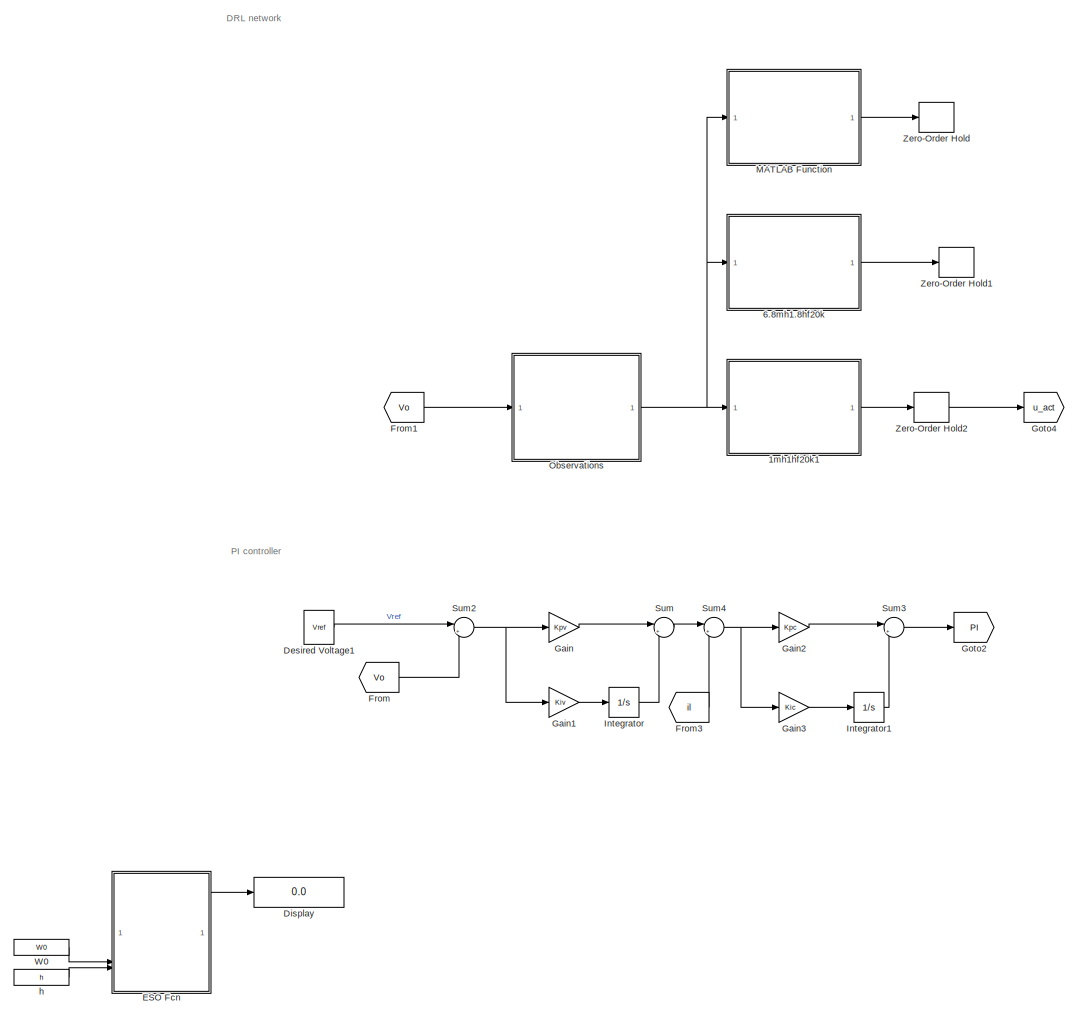
[diagram: root canvas - part 1/2, left side, full height]
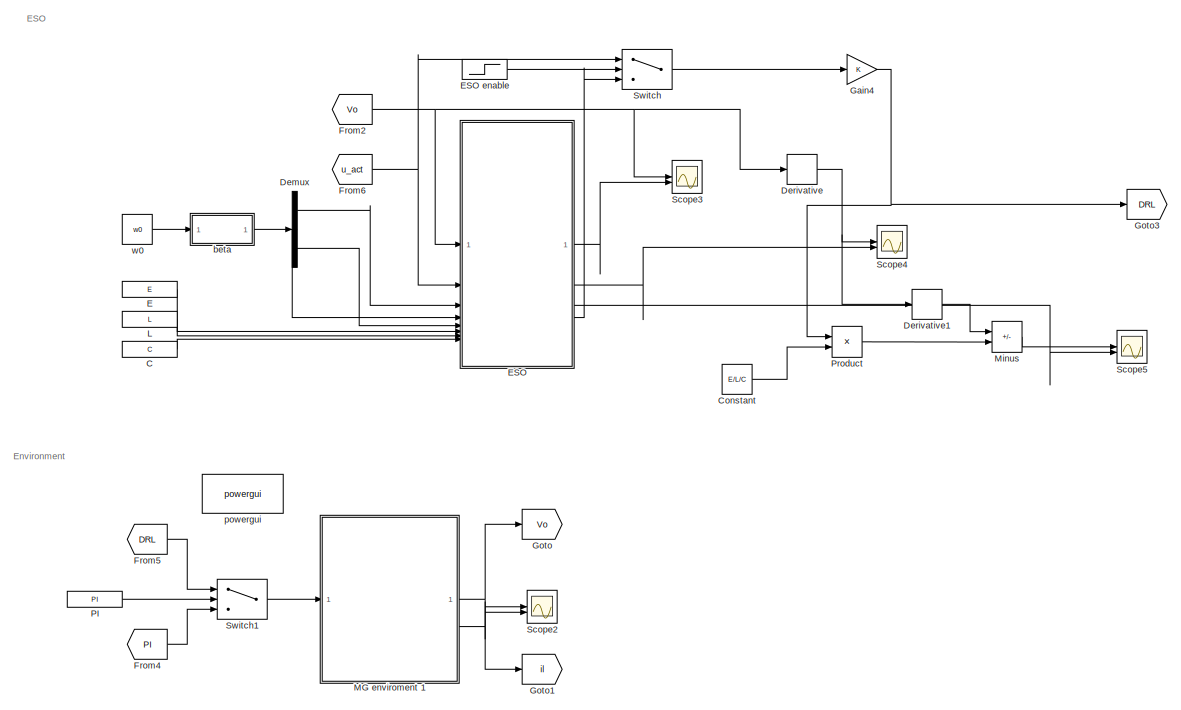
[diagram: root canvas - part 2/2, middle right region]
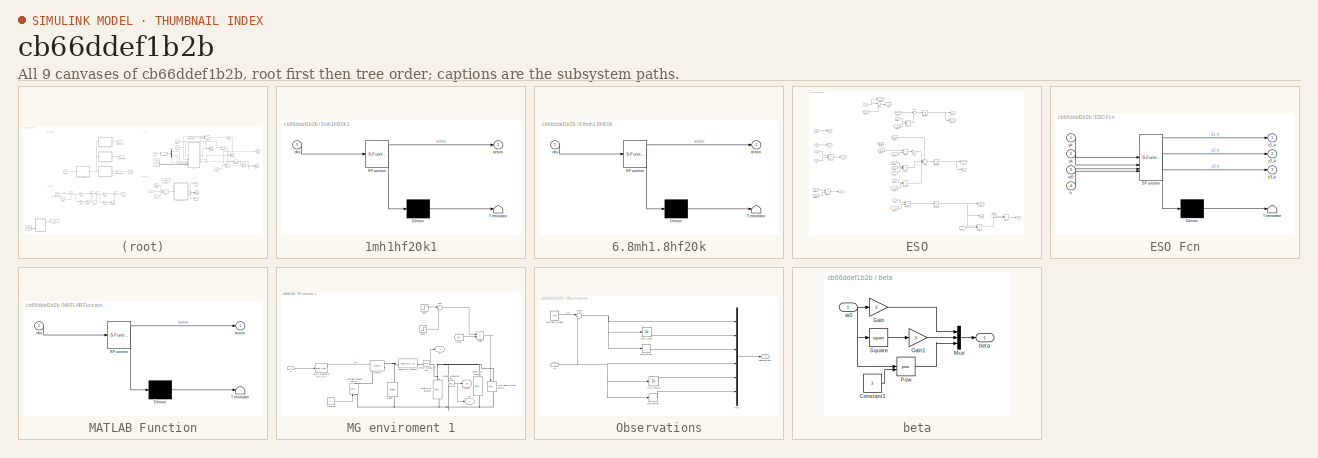
[diagram: thumbnail index - all 9 canvases of the model, root first then tree order]
MODEL slx_cb66ddef1b2b
KIND model
CONFIG AbsTol = auto
CONFIG EnableMultiTasking = off
CONFIG FixedStep = auto
CONFIG MaxStep = auto
CONFIG MinStep = auto
CONFIG PostLoadFcn = , if any(exist('dsrtsu_mdlpostloadfcn', 'file') == [2, 3, 6]), try dsrtsu_mdlpostloadfcn('Execute', bdroot); catch fprintf('Error in PostLoadFcn (dsrtsu_mdlpostloadfcn) for model "%s":\n %s\n', bdroot, lasterr); end, end, \n
CONFIG RelTol = 1e-3
CONFIG SampleTimeConstraint = Unconstrained
CONFIG SolverName = VariableStepAuto
CONFIG StartTime = 0.0
CONFIG StopTime = 0.4
BLOCK [SubSystem] 1mh1hf20k1
  ErrorFcn = Stateflow.Translate.translate
  PermitHierarchicalResolution = ExplicitOnly
  SFBlockType = MATLAB Function
  TreatAsAtomicUnit = on
BLOCK [Demux] 1mh1hf20k1/ Demux 
  Outputs = 1
BLOCK [S-Function] 1mh1hf20k1/ SFunction 
  EnableBusSupport = on
  FunctionName = sf_sfun
  PortCounts = [1 2]
  SFcnIsStateOwnerBlock = off
  SFunctionDeploymentMode = off
  Tag = Stateflow S-Function 3
BLOCK [Terminator] 1mh1hf20k1/ Terminator 
BLOCK [Outport] 1mh1hf20k1/action
BLOCK [Inport] 1mh1hf20k1/obs
BLOCK [SubSystem] 6.8mh1.8hf20k
  Commented = on
  ErrorFcn = Stateflow.Translate.translate
  PermitHierarchicalResolution = ExplicitOnly
  SFBlockType = MATLAB Function
  TreatAsAtomicUnit = on
BLOCK [Demux] 6.8mh1.8hf20k/ Demux 
  Outputs = 1
BLOCK [S-Function] 6.8mh1.8hf20k/ SFunction 
  EnableBusSupport = off
  FunctionName = sf_sfun
  PortCounts = [1 2]
  SFcnIsStateOwnerBlock = off
  SFunctionDeploymentMode = off
  Tag = Stateflow S-Function 1
BLOCK [Terminator] 6.8mh1.8hf20k/ Terminator 
BLOCK [Outport] 6.8mh1.8hf20k/action
BLOCK [Inport] 6.8mh1.8hf20k/obs
BLOCK [Constant] C
  Value = C
BLOCK [Constant] Constant
  Value = E/L/C
BLOCK [Demux] Demux
  Outputs = 3
BLOCK [Derivative] Derivative
BLOCK [Derivative] Derivative1
BLOCK [Constant] Desired Voltage1
  Value = Vref
BLOCK [Display] Display
  Commented = on
  Decimation = 1
BLOCK [Constant] E
  Value = E
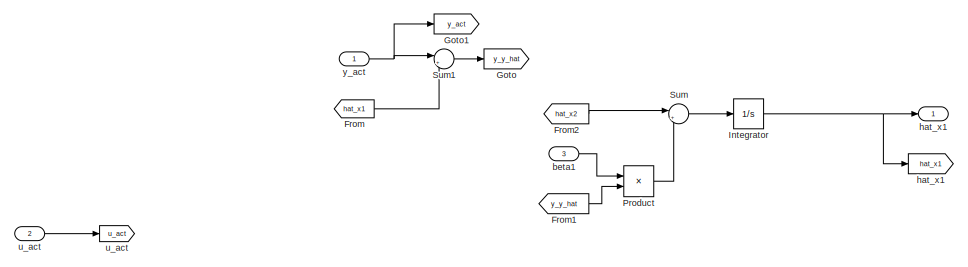
[diagram: ESO - part 1/2, top center region]
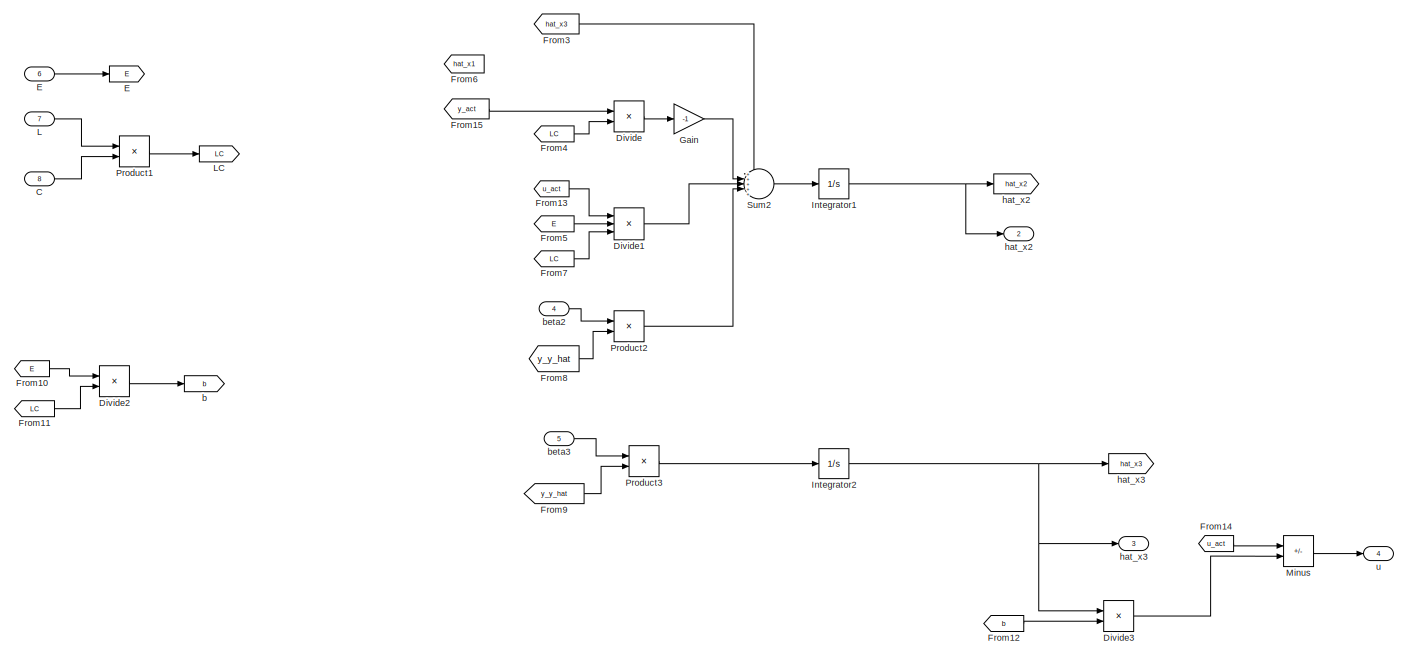
[diagram: ESO - part 2/2, full width, middle band]
BLOCK [SubSystem] ESO
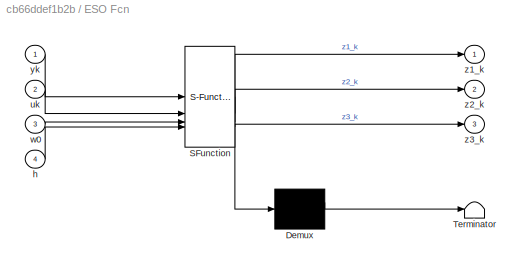
BLOCK [SubSystem] ESO Fcn
  Commented = on
  ErrorFcn = Stateflow.Translate.translate
  PermitHierarchicalResolution = ExplicitOnly
  SFBlockType = MATLAB Function
  TreatAsAtomicUnit = on
BLOCK [Demux] ESO Fcn/ Demux 
  Outputs = 1
BLOCK [S-Function] ESO Fcn/ SFunction 
  EnableBusSupport = off
  FunctionName = sf_sfun
  PortCounts = [4 4]
  SFcnIsStateOwnerBlock = off
  SFunctionDeploymentMode = off
  Tag = Stateflow S-Function 4
BLOCK [Terminator] ESO Fcn/ Terminator 
BLOCK [Inport] ESO Fcn/h
  Port = 4
BLOCK [Inport] ESO Fcn/uk
  Port = 2
BLOCK [Inport] ESO Fcn/w0
  Port = 3
BLOCK [Inport] ESO Fcn/yk
BLOCK [Outport] ESO Fcn/z1_k
BLOCK [Outport] ESO Fcn/z2_k
  Port = 2
BLOCK [Outport] ESO Fcn/z3_k
  Port = 3
BLOCK [Step] ESO enable
  After = ESO
  Before = 1
  SampleTime = 0
  Time = 0.01
BLOCK [Inport] ESO/C
  Port = 8
BLOCK [Product] ESO/Divide
  Inputs = */
BLOCK [Product] ESO/Divide1
  Inputs = **/
BLOCK [Product] ESO/Divide2
  Inputs = */
BLOCK [Product] ESO/Divide3
  Inputs = */
BLOCK [Inport] ESO/E
  Port = 6
BLOCK [Goto] ESO/E 
  GotoTag = E
BLOCK [From] ESO/From
  GotoTag = hat_x1
BLOCK [From] ESO/From1
  GotoTag = y_y_hat
BLOCK [From] ESO/From10
  GotoTag = E
BLOCK [From] ESO/From11
  GotoTag = LC
BLOCK [From] ESO/From12
  GotoTag = b
BLOCK [From] ESO/From13
  GotoTag = u_act
BLOCK [From] ESO/From14
  GotoTag = u_act
BLOCK [From] ESO/From15
  GotoTag = y_act
BLOCK [From] ESO/From2
  GotoTag = hat_x2
BLOCK [From] ESO/From3
  GotoTag = hat_x3
BLOCK [From] ESO/From4
  GotoTag = LC
BLOCK [From] ESO/From5
  GotoTag = E
BLOCK [From] ESO/From6
  GotoTag = hat_x1
BLOCK [From] ESO/From7
  GotoTag = LC
BLOCK [From] ESO/From8
  GotoTag = y_y_hat
BLOCK [From] ESO/From9
  GotoTag = y_y_hat
BLOCK [Gain] ESO/Gain
  Gain = -1
BLOCK [Goto] ESO/Goto
  GotoTag = y_y_hat
BLOCK [Goto] ESO/Goto1
  GotoTag = y_act
BLOCK [Integrator] ESO/Integrator
BLOCK [Integrator] ESO/Integrator1
BLOCK [Integrator] ESO/Integrator2
BLOCK [Inport] ESO/L
  Port = 7
BLOCK [Goto] ESO/LC
  GotoTag = LC
BLOCK [Sum] ESO/Minus
  IconShape = rectangular
  Inputs = +-
BLOCK [Product] ESO/Product
BLOCK [Product] ESO/Product1
BLOCK [Product] ESO/Product2
BLOCK [Product] ESO/Product3
BLOCK [Sum] ESO/Sum
  Inputs = |++
BLOCK [Sum] ESO/Sum1
  Inputs = |+-
BLOCK [Sum] ESO/Sum2
  Inputs = +++++
BLOCK [Goto] ESO/b
  GotoTag = b
BLOCK [Inport] ESO/beta1
  Port = 3
BLOCK [Inport] ESO/beta2
  Port = 4
BLOCK [Inport] ESO/beta3
  Port = 5
BLOCK [Goto] ESO/hat_x1
  GotoTag = hat_x1
BLOCK [Outport] ESO/hat_x1 
  VectorParamsAs1DForOutWhenUnconnected = off
BLOCK [Goto] ESO/hat_x2
  GotoTag = hat_x2
BLOCK [Outport] ESO/hat_x2 
  Port = 2
  VectorParamsAs1DForOutWhenUnconnected = off
BLOCK [Goto] ESO/hat_x3
  GotoTag = hat_x3
BLOCK [Outport] ESO/hat_x3 
  Port = 3
  VectorParamsAs1DForOutWhenUnconnected = off
BLOCK [Outport] ESO/u
  Port = 4
  VectorParamsAs1DForOutWhenUnconnected = off
BLOCK [Inport] ESO/u_act
  Port = 2
BLOCK [Goto] ESO/u_act 
  GotoTag = u_act
BLOCK [Inport] ESO/y_act
BLOCK [From] From
  GotoTag = Vo
BLOCK [From] From1
  GotoTag = Vo
BLOCK [From] From2
  GotoTag = Vo
BLOCK [From] From3
  GotoTag = il
BLOCK [From] From4
  GotoTag = PI
BLOCK [From] From5
  GotoTag = DRL
BLOCK [From] From6
  GotoTag = u_act
BLOCK [Gain] Gain
  Gain = Kpv
BLOCK [Gain] Gain1
  Gain = Kiv
BLOCK [Gain] Gain2
  Gain = Kpc
BLOCK [Gain] Gain3
  Gain = Kic
BLOCK [Gain] Gain4
BLOCK [Goto] Goto
  GotoTag = Vo
BLOCK [Goto] Goto1
  GotoTag = il
BLOCK [Goto] Goto2
  GotoTag = PI
BLOCK [Goto] Goto3
  GotoTag = DRL
BLOCK [Goto] Goto4
  GotoTag = u_act
BLOCK [Integrator] Integrator
BLOCK [Integrator] Integrator1
BLOCK [Constant] L
  Value = L
BLOCK [SubSystem] MATLAB Function
  Commented = on
  ErrorFcn = Stateflow.Translate.translate
  PermitHierarchicalResolution = ExplicitOnly
  SFBlockType = MATLAB Function
  TreatAsAtomicUnit = on
BLOCK [Demux] MATLAB Function/ Demux 
  Outputs = 1
BLOCK [S-Function] MATLAB Function/ SFunction 
  EnableBusSupport = off
  FunctionName = sf_sfun
  PortCounts = [1 2]
  SFcnIsStateOwnerBlock = off
  SFunctionDeploymentMode = off
  Tag = Stateflow S-Function 2
BLOCK [Terminator] MATLAB Function/ Terminator 
BLOCK [Outport] MATLAB Function/action
BLOCK [Inport] MATLAB Function/obs
BLOCK [SubSystem] MG enviroment 1
BLOCK [Constant] MG enviroment 1/Constant
  Value = E
BLOCK [Reference] MG enviroment 1/Controlled Current Source  REF=spsControlledCurrentSourceLib/Controlled Current Source
  NameLocation = left
  SourceBlock = spsControlledCurrentSourceLib/Controlled Current Source
  SourceType = Controlled Current Source
BLOCK [Reference] MG enviroment 1/Controlled Voltage Source  REF=spsControlledVoltageSourceLib/Controlled Voltage Source
  NameLocation = right
  SourceBlock = spsControlledVoltageSourceLib/Controlled Voltage Source
  SourceType = Controlled Voltage Source
BLOCK [Reference] MG enviroment 1/Current Measurement  REF=spsCurrentMeasurementLib/Current Measurement
  SourceBlock = spsCurrentMeasurementLib/Current Measurement
  SourceType = Current Measurement
  UserDataPersistent = on
BLOCK [Inport] MG enviroment 1/D
BLOCK [Reference] MG enviroment 1/Diode  REF=spsDiodeLib/Diode
  NameLocation = right
  SourceBlock = spsDiodeLib/Diode
  SourceType = Diode
BLOCK [Product] MG enviroment 1/Divide
  Inputs = */
BLOCK [From] MG enviroment 1/From
  GotoTag = vo
BLOCK [Goto] MG enviroment 1/Goto
  GotoTag = vo
BLOCK [Reference] MG enviroment 1/Mosfet  REF=spsMosfetLib/Mosfet
  NameLocation = top
  SourceBlock = spsMosfetLib/Mosfet
  SourceType = Mosfet
BLOCK [Reference] MG enviroment 1/PWM Generator (DC-DC)  REF=spsPWMGeneratorDCDCLib/PWM Generator
(DC-DC)
  SourceBlock = spsPWMGeneratorDCDCLib/PWM Generator\n(DC-DC)
  SourceType = PWM Generator (DC-DC)
BLOCK [Reference] MG enviroment 1/Series RLC Branch  REF=spsSeriesRLCBranchLib/Series RLC Branch
  SourceBlock = spsSeriesRLCBranchLib/Series RLC Branch
  SourceType = Series RLC Branch
BLOCK [Reference] MG enviroment 1/Series RLC Branch1  REF=spsSeriesRLCBranchLib/Series RLC Branch
  NameLocation = left
  SourceBlock = spsSeriesRLCBranchLib/Series RLC Branch
  SourceType = Series RLC Branch
BLOCK [Reference] MG enviroment 1/Series RLC Branch2  REF=spsSeriesRLCBranchLib/Series RLC Branch
  NameLocation = left
  SourceBlock = spsSeriesRLCBranchLib/Series RLC Branch
  SourceType = Series RLC Branch
BLOCK [Step] MG enviroment 1/Step
  After = p2
  Before = p1
  SampleTime = 0
  Time = t1
BLOCK [Step] MG enviroment 1/Step1
  After = p1-p2
  SampleTime = 0
  Time = t2
BLOCK [Sum] MG enviroment 1/Sum
  Inputs = |++
BLOCK [Outport] MG enviroment 1/Vo
  VectorParamsAs1DForOutWhenUnconnected = off
BLOCK [Reference] MG enviroment 1/Voltage Measurement  REF=spsVoltageMeasurementLib/Voltage Measurement
  SourceBlock = spsVoltageMeasurementLib/Voltage Measurement
  SourceType = Voltage Measurement
  UserDataPersistent = on
BLOCK [Outport] MG enviroment 1/il
  Port = 2
  VectorParamsAs1DForOutWhenUnconnected = off
BLOCK [Sum] Minus
  IconShape = rectangular
  Inputs = +-
BLOCK [SubSystem] Observations
BLOCK [Derivative] Observations/Derivative
BLOCK [Derivative] Observations/Derivative1
BLOCK [Constant] Observations/Desired Voltage
  Value = Vref
BLOCK [Mux] Observations/Mux
  DisplayOption = bar
  Inputs = 6
BLOCK [Sum] Observations/Sum1
  Inputs = |+-
  SaturateOnIntegerOverflow = on
BLOCK [UnitDelay] Observations/Unit Delay
  HasFrameUpgradeWarning = on
  SampleTime = -1
BLOCK [UnitDelay] Observations/Unit Delay1
  HasFrameUpgradeWarning = on
  SampleTime = -1
BLOCK [Inport] Observations/Vo
  NameLocation = top
BLOCK [Outport] Observations/observations
  VectorParamsAs1DForOutWhenUnconnected = off
BLOCK [Constant] PI
  Value = PI
BLOCK [Product] Product
BLOCK [Scope] Scope2
  Floating = off
  NumInputPorts = 2
  ScopeSpecificationString = Simulink.scopes.TimeScopeBlockCfg('CurrentConfiguration', extmgr.ConfigurationSet(extmgr.Configuration('Core','General UI',true),extmgr.Configuration('Core','Source UI',true),extmgr.Configuration('Sources','WiredSimulink',true,'DataLoggingVariableName','PI2','DataLogging',true,'DataLoggingSaveFormat','StructureWithTime'),extmgr.Configuration('Visuals','Time Domain',true,'SerializedDisplays',{struc...<+2123ch>
BLOCK [Scope] Scope3
  Floating = off
  NumInputPorts = 2
  ScopeSpecificationString = Simulink.scopes.TimeScopeBlockCfg('CurrentConfiguration', extmgr.ConfigurationSet(extmgr.Configuration('Core','General UI',true),extmgr.Configuration('Core','Source UI',true),extmgr.Configuration('Sources','WiredSimulink',true,'DataLoggingVariableName','x1','DataLogging',true,'DataLoggingSaveFormat','StructureWithTime'),extmgr.Configuration('Visuals','Time Domain',true,'SerializedDisplays',{struct...<+1595ch>
BLOCK [Scope] Scope4
  Floating = off
  NumInputPorts = 2
  ScopeSpecificationString = Simulink.scopes.TimeScopeBlockCfg('CurrentConfiguration', extmgr.ConfigurationSet(extmgr.Configuration('Core','General UI',true),extmgr.Configuration('Core','Source UI',true),extmgr.Configuration('Sources','WiredSimulink',true,'DataLoggingVariableName','x2','DataLogging',true,'DataLoggingSaveFormat','StructureWithTime'),extmgr.Configuration('Visuals','Time Domain',true,'SerializedDisplays',{struct...<+1614ch>
BLOCK [Scope] Scope5
  Floating = off
  NumInputPorts = 2
  ScopeSpecificationString = Simulink.scopes.TimeScopeBlockCfg('CurrentConfiguration', extmgr.ConfigurationSet(extmgr.Configuration('Core','General UI',true),extmgr.Configuration('Core','Source UI',true),extmgr.Configuration('Sources','WiredSimulink',true,'DataLoggingVariableName','x3','DataLogging',true,'DataLoggingSaveFormat','StructureWithTime'),extmgr.Configuration('Visuals','Time Domain',true,'SerializedDisplays',{struct...<+1757ch>
BLOCK [Sum] Sum
  Inputs = |++
BLOCK [Sum] Sum2
  Inputs = |+-
BLOCK [Sum] Sum3
  Inputs = |++
BLOCK [Sum] Sum4
  Inputs = |+-
BLOCK [Switch] Switch
  Criteria = u2 > Threshold
  InputSameDT = off
  SaturateOnIntegerOverflow = off
BLOCK [Switch] Switch1
  Criteria = u2 > Threshold
  InputSameDT = off
  SaturateOnIntegerOverflow = off
BLOCK [Constant] W0
  Commented = on
  Value = W0
BLOCK [ZeroOrderHold] Zero-Order Hold
  Commented = on
  SampleTime = 1/20000
BLOCK [ZeroOrderHold] Zero-Order Hold1
  Commented = on
  SampleTime = 1/20000
BLOCK [ZeroOrderHold] Zero-Order Hold2
  SampleTime = 1/20000
BLOCK [SubSystem] beta
BLOCK [Constant] beta/Constant1
  Value = 3
BLOCK [Gain] beta/Gain
  Gain = 3
BLOCK [Gain] beta/Gain1
  Gain = 3
BLOCK [Mux] beta/Mux
  DisplayOption = bar
  Inputs = 3
BLOCK [Math] beta/Pow
  Operator = pow
  RndMeth = Zero
BLOCK [Math] beta/Square
  Operator = square
BLOCK [Outport] beta/beta
BLOCK [Inport] beta/w0
BLOCK [Constant] h
  Commented = on
  Value = h
BLOCK [Reference] powergui  REF=sps_lib/powergui
  LibrarySourceBlock = sps_lib/powergui
  Priority = 1
  SourceBlock = sps_lib/powergui
  SourceType = PSB option menu block
BLOCK [Constant] w0
  Value = w0
ANNOTATION (root): DRL network
ANNOTATION (root): ESO
ANNOTATION (root): Environment
ANNOTATION (root): PI controller
LINE 1mh1hf20k1:1 -> Zero-Order Hold2:1
LINE 6.8mh1.8hf20k:1 -> Zero-Order Hold1:1
LINE C:1 -> ESO:8
LINE Constant:1 -> Product:2
LINE Demux:1 -> ESO:3
LINE Demux:2 -> ESO:4
LINE Demux:3 -> ESO:5
LINE Derivative1:1 -> Minus:1
NET Derivative:1 -> Derivative1:1, Scope4:1
LINE Desired Voltage1:1 -> Sum2:1
LINE E:1 -> ESO:6
LINE ESO Fcn:1 -> Display:1
LINE ESO enable:1 -> Switch:2
LINE ESO/C:1 -> ESO/Product1:2
LINE ESO/Divide1:1 -> ESO/Sum2:3
LINE ESO/Divide2:1 -> ESO/b:1
LINE ESO/Divide3:1 -> ESO/Minus:2
LINE ESO/Divide:1 -> ESO/Gain:1
LINE ESO/E:1 -> ESO/E :1
LINE ESO/From10:1 -> ESO/Divide2:1
LINE ESO/From11:1 -> ESO/Divide2:2
LINE ESO/From12:1 -> ESO/Divide3:2
LINE ESO/From13:1 -> ESO/Divide1:1
LINE ESO/From14:1 -> ESO/Minus:1
LINE ESO/From15:1 -> ESO/Divide:1
LINE ESO/From1:1 -> ESO/Product:2
LINE ESO/From2:1 -> ESO/Sum:1
LINE ESO/From3:1 -> ESO/Sum2:1
LINE ESO/From4:1 -> ESO/Divide:2
LINE ESO/From5:1 -> ESO/Divide1:2
LINE ESO/From7:1 -> ESO/Divide1:3
LINE ESO/From8:1 -> ESO/Product2:2
LINE ESO/From9:1 -> ESO/Product3:2
LINE ESO/From:1 -> ESO/Sum1:2
LINE ESO/Gain:1 -> ESO/Sum2:2
NET ESO/Integrator1:1 -> ESO/hat_x2 :1, ESO/hat_x2:1
NET ESO/Integrator2:1 -> ESO/Divide3:1, ESO/hat_x3 :1, ESO/hat_x3:1
NET ESO/Integrator:1 -> ESO/hat_x1 :1, ESO/hat_x1:1
LINE ESO/L:1 -> ESO/Product1:1
LINE ESO/Minus:1 -> ESO/u:1
LINE ESO/Product1:1 -> ESO/LC:1
LINE ESO/Product2:1 -> ESO/Sum2:4
LINE ESO/Product3:1 -> ESO/Integrator2:1
LINE ESO/Product:1 -> ESO/Sum:2
LINE ESO/Sum1:1 -> ESO/Goto:1
LINE ESO/Sum2:1 -> ESO/Integrator1:1
LINE ESO/Sum:1 -> ESO/Integrator:1
LINE ESO/beta1:1 -> ESO/Product:1
LINE ESO/beta2:1 -> ESO/Product2:1
LINE ESO/beta3:1 -> ESO/Product3:1
LINE ESO/u_act:1 -> ESO/u_act :1
NET ESO/y_act:1 -> ESO/Goto1:1, ESO/Sum1:1
LINE ESO:1 -> Scope3:2
LINE ESO:2 -> Scope4:2
LINE ESO:3 -> Scope5:2
LINE ESO:4 -> Switch:3
LINE From1:1 -> Observations:1
NET From2:1 -> Derivative:1, ESO:1, Scope3:1
LINE From3:1 -> Sum4:2
LINE From4:1 -> Switch1:3
LINE From5:1 -> Switch1:1
NET From6:1 -> ESO:2, Switch:1
LINE From:1 -> Sum2:2
LINE Gain1:1 -> Integrator:1
LINE Gain2:1 -> Sum3:1
LINE Gain3:1 -> Integrator1:1
NET Gain4:1 -> Goto3:1, Product:1
LINE Gain:1 -> Sum:1
LINE Integrator1:1 -> Sum3:2
LINE Integrator:1 -> Sum:2
LINE L:1 -> ESO:7
LINE MATLAB Function:1 -> Zero-Order Hold:1
LINE MG enviroment 1/Constant:1 -> MG enviroment 1/Controlled Voltage Source:1
LINE MG enviroment 1/Current Measurement:1 -> MG enviroment 1/il:1
LINE MG enviroment 1/D:1 -> MG enviroment 1/PWM Generator (DC-DC):1
LINE MG enviroment 1/Divide:1 -> MG enviroment 1/Controlled Current Source:1
LINE MG enviroment 1/From:1 -> MG enviroment 1/Divide:2
LINE MG enviroment 1/PWM Generator (DC-DC):1 -> MG enviroment 1/Mosfet:1
LINE MG enviroment 1/Step1:1 -> MG enviroment 1/Sum:2
LINE MG enviroment 1/Step:1 -> MG enviroment 1/Sum:1
LINE MG enviroment 1/Sum:1 -> MG enviroment 1/Divide:1
NET MG enviroment 1/Voltage Measurement:1 -> MG enviroment 1/Goto:1, MG enviroment 1/Vo:1
NET MG enviroment 1:1 -> Goto:1, Scope2:1
NET MG enviroment 1:2 -> Goto1:1, Scope2:2
LINE Minus:1 -> Scope5:1
LINE Observations/Derivative1:1 -> Observations/Mux:3
LINE Observations/Derivative:1 -> Observations/Mux:6
LINE Observations/Desired Voltage:1 -> Observations/Sum1:1
LINE Observations/Mux:1 -> Observations/observations:1
NET Observations/Sum1:1 -> Observations/Derivative1:1, Observations/Mux:1, Observations/Unit Delay:1
LINE Observations/Unit Delay1:1 -> Observations/Mux:5
LINE Observations/Unit Delay:1 -> Observations/Mux:2
NET Observations/Vo:1 -> Observations/Derivative:1, Observations/Mux:4, Observations/Sum1:2, Observations/Unit Delay1:1
NET Observations:1 -> 1mh1hf20k1:1, 6.8mh1.8hf20k:1, MATLAB Function:1
LINE PI:1 -> Switch1:2
LINE Product:1 -> Minus:2
NET Sum2:1 -> Gain1:1, Gain:1
LINE Sum3:1 -> Goto2:1
NET Sum4:1 -> Gain2:1, Gain3:1
LINE Sum:1 -> Sum4:1
LINE Switch1:1 -> MG enviroment 1:1
LINE Switch:1 -> Gain4:1
LINE W0:1 -> ESO Fcn:3
LINE Zero-Order Hold2:1 -> Goto4:1
LINE beta/Constant1:1 -> beta/Pow:2
LINE beta/Gain1:1 -> beta/Mux:2
LINE beta/Gain:1 -> beta/Mux:1
LINE beta/Mux:1 -> beta/beta:1
LINE beta/Pow:1 -> beta/Mux:3
LINE beta/Square:1 -> beta/Gain1:1
NET beta/w0:1 -> beta/Gain:1, beta/Pow:1, beta/Square:1
LINE beta:1 -> Demux:1
LINE h:1 -> ESO Fcn:4
LINE w0:1 -> beta:1
PNET net1: MG enviroment 1/Controlled Current Source:LConn1 -- MG enviroment 1/Current Measurement:RConn1 -- MG enviroment 1/Series RLC Branch1:LConn1 -- MG enviroment 1/Series RLC Branch2:LConn1 -- MG enviroment 1/Voltage Measurement:LConn1
PNET net2: MG enviroment 1/Controlled Current Source:RConn1 -- MG enviroment 1/Controlled Voltage Source:LConn1 -- MG enviroment 1/Diode:LConn1 -- MG enviroment 1/Series RLC Branch1:RConn1 -- MG enviroment 1/Series RLC Branch2:RConn1 -- MG enviroment 1/Voltage Measurement:LConn2
PLINE MG enviroment 1/Controlled Voltage Source:RConn1 -- MG enviroment 1/Mosfet:LConn1
PLINE MG enviroment 1/Current Measurement:LConn1 -- MG enviroment 1/Series RLC Branch:RConn1
PNET net3: MG enviroment 1/Diode:RConn1 -- MG enviroment 1/Mosfet:RConn1 -- MG enviroment 1/Series RLC Branch:LConn1
note: NET lines group one-source signal fan-out (src -> all destinations, sorted); 1:1 wires keep LINE; PNET lines group multi-terminal physical nets as a canonical sorted terminal list (undirected conserving connections); 2-terminal nets keep the pairwise PLINE form
CHART 6.8mh1.8hf20k states=1 transitions=1
  STATE_LABEL 'eML_blk_kernel()'
  STATE_LABEL 'SCRIPT:\nfunction action = RLInference(obs)\nW1 = [0.066938639,0.066804036,-0.13333005,-0.12076974,-0.11297492,-0.13651904;0.063942052,0.064108774,0.059746251,0.25365081,-0.51855224,0.050533459;-0.00091686606,-0.00072082831,0.051824193,-0.029371638,-0.027409162,0.051227719;-0.75057733,-1.1882813,0.19018754,-0.38000277,-0.053273119,0.22787029;0.052086074,0.038876120,-0.21558014,0.46261823,-0.72194499...<+3608ch>'
CHART MATLAB Function states=1 transitions=1
  STATE_LABEL 'eML_blk_kernel()'
  STATE_LABEL 'SCRIPT:\nfunction action = RLInference(obs)\nW1 = [0.066938639,0.066804036,-0.13333005,-0.12076974,-0.11297492,-0.13651904;0.063942052,0.064108774,0.059746251,0.25365081,-0.51855224,0.050533459;-0.00091686606,-0.00072082831,0.051824193,-0.029371638,-0.027409162,0.051227719;-0.75057733,-1.1882813,0.19018754,-0.38000277,-0.053273119,0.22787029;0.052086074,0.038876120,-0.21558014,0.46261823,-0.72194499...<+3608ch>'
CHART 1mh1hf20k1 states=1 transitions=1
  STATE_LABEL 'eML_blk_kernel()'
  STATE_LABEL 'SCRIPT:\nfunction action = RLInference(obs)\nW1 = [0.47411132,0.48765868,-0.16579145,-0.32852331,-0.26730824,-0.16503251;9.3947554,9.4187317,0.057613052,0.070572376,-0.10087588,0.054228768;0.059764750,0.079413757,0.076187946,-0.12615022,-0.13696484,0.076158620;1.7693853,1.3685369,0.20886701,-0.49281669,-0.13571954,0.20917140;-3.5287499,-3.8303652,-0.26703918,0.89445901,0.50708753,-0.17661516;0.03008...<+3608ch>'
CHART ESO Fcn states=1 transitions=1
  STATE_LABEL 'eML_blk_kernel()'
  STATE_LABEL 'SCRIPT:\n%This function :扩张状态观测器\n% Name        : ESO\n% Descritions : e = z1 - y\n%               z1(k+1) = z1(k) + h*(z2 - β01*e)\n%               z2(k+1) = z2(k) + h*(z3 + b*u - β02*e)\n%               z3(k+1) = z3(k)  - h*β03*e\n% h:采样周期\n%β01=3w0，β02=3w0^2，β03=w0^3：控制器参数\n\nfunction [z1_k,z2_k,z3_k] = ESO(yk,uk,w0,h)\n%%  variables definition\npersistent  z1_k_1 z2_k_1 z3_k_1\n% beta01=30;\n% beta02=300;\n%...<+627ch>'
CHART  states=0 transitions=0
CHART  states=0 transitions=0
CHART  states=0 transitions=0
CHART  states=0 transitions=0
